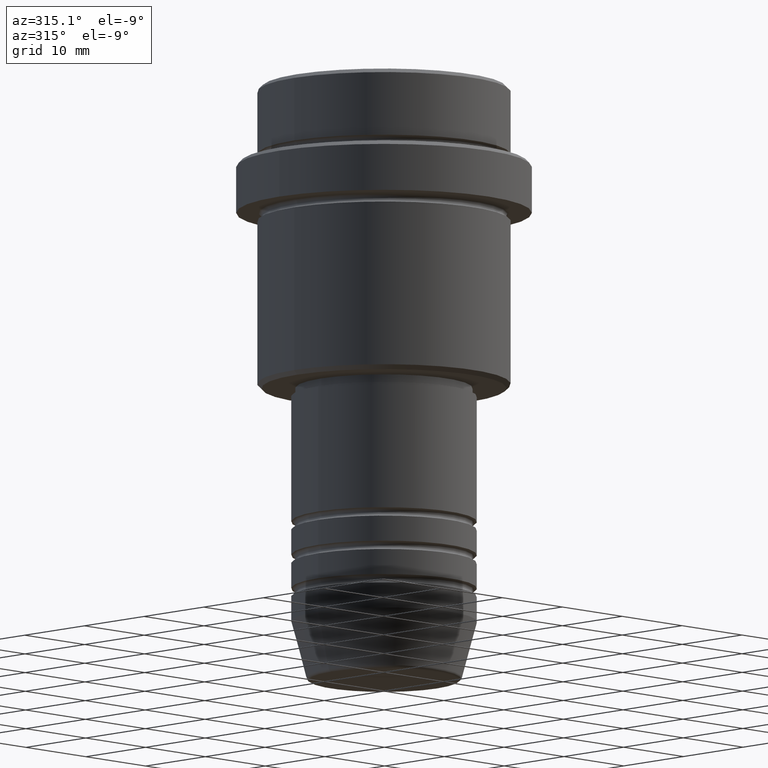
[diagram: clean part render]
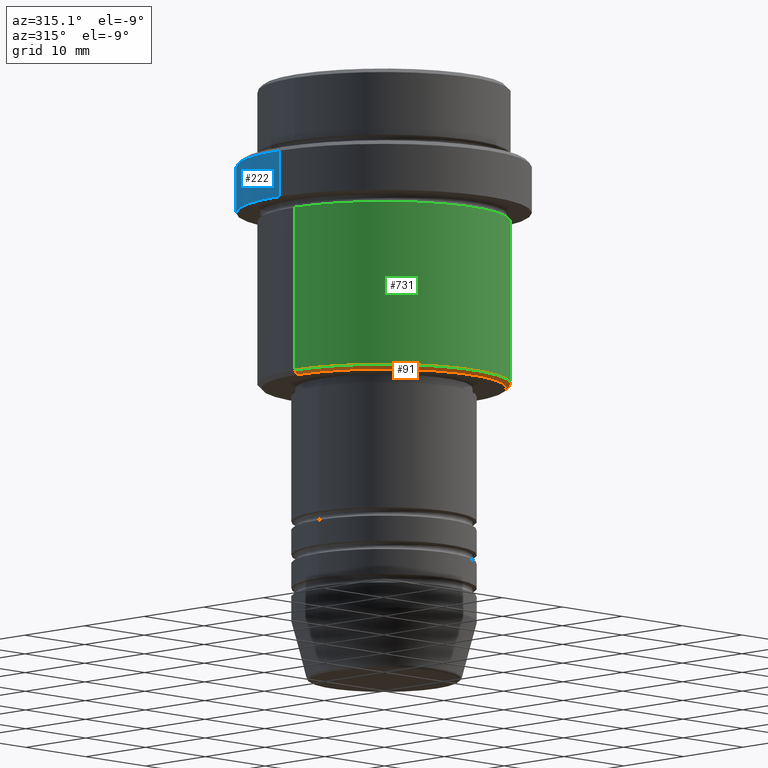
[diagram: same view with three faces highlighted in distinct colors, each labeled with its STEP entity id]
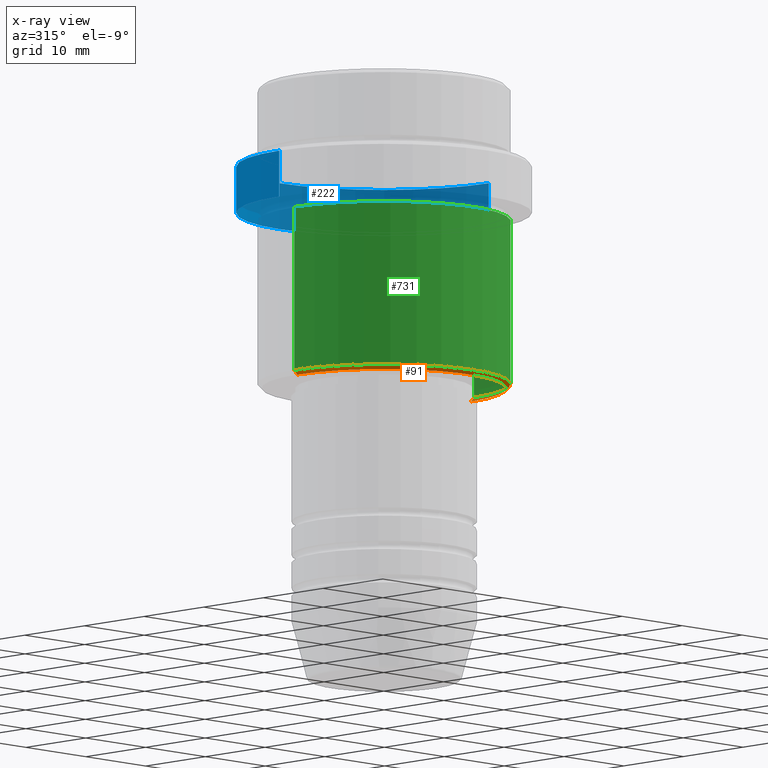
[diagram: x-ray of the same camera — body ghosted, the three highlighted faces saturated]
A machine part, auxiliary view with three faces highlighted in distinct colors.
The next image is the same camera in x-ray (body ghosted, the three faces saturated) — at least one of them is partly hidden behind the body in this view.
Their STEP definitions:

[orange] entity #91 — the highlighted conical surface has half-angle 45 deg.
#21 = ORIENTED_EDGE ( 'NONE', *, *, #1215, .F. ) ;
#91 = ADVANCED_FACE ( 'NONE', ( #445 ), #1347, .T. ) ;
#127 = EDGE_CURVE ( 'NONE', #869, #558, #894, .T. ) ;
#156 = CIRCLE ( 'NONE', #1067, 15.00000000000000000 ) ;
#165 = EDGE_CURVE ( 'NONE', #558, #968, #1014, .T. ) ;
#185 = CARTESIAN_POINT ( 'NONE',  ( 15.00000000000000000, 0.000000000000000000, -35.49999999999998579 ) ) ;
#241 = CARTESIAN_POINT ( 'NONE',  ( -15.00000000000000000, 1.836970198721029589E-15, -35.49999999999998579 ) ) ;
#248 = VECTOR ( 'NONE', #1298, 999.9999999999998863 ) ;
#270 = AXIS2_PLACEMENT_3D ( 'NONE', #677, #906, #352 ) ;
#352 = DIRECTION ( 'NONE',  ( -1.000000000000000000, 0.000000000000000000, 0.000000000000000000 ) ) ;
#382 = EDGE_CURVE ( 'NONE', #869, #976, #1083, .T. ) ;
#445 = FACE_OUTER_BOUND ( 'NONE', #580, .T. ) ;
#491 = DIRECTION ( 'NONE',  ( -0.000000000000000000, -0.000000000000000000, 1.000000000000000000 ) ) ;
#517 = CARTESIAN_POINT ( 'NONE',  ( 15.00000000000000000, 0.000000000000000000, -35.49999999999998579 ) ) ;
#558 = VERTEX_POINT ( 'NONE', #1140 ) ;
#580 = EDGE_LOOP ( 'NONE', ( #1138, #1082, #787, #21 ) ) ;
#677 = CARTESIAN_POINT ( 'NONE',  ( 0.000000000000000000, 0.000000000000000000, -36.00000000000000000 ) ) ;
#721 = CARTESIAN_POINT ( 'NONE',  ( 0.000000000000000000, 0.000000000000000000, -35.49999999999998579 ) ) ;
#730 = VECTOR ( 'NONE', #808, 999.9999999999998863 ) ;
#771 = DIRECTION ( 'NONE',  ( -0.000000000000000000, -0.000000000000000000, 1.000000000000000000 ) ) ;
#787 = ORIENTED_EDGE ( 'NONE', *, *, #382, .T. ) ;
#808 = DIRECTION ( 'NONE',  ( -0.7071067811865439090, 8.659560562354888485E-17, 0.7071067811865512365 ) ) ;
#809 = CARTESIAN_POINT ( 'NONE',  ( 14.49999999999999112, 0.000000000000000000, -36.00000000000000000 ) ) ;
#869 = VERTEX_POINT ( 'NONE', #809 ) ;
#883 = DIRECTION ( 'NONE',  ( 1.000000000000000000, 0.000000000000000000, 0.000000000000000000 ) ) ;
#894 = CIRCLE ( 'NONE', #270, 14.49999999999999112 ) ;
#906 = DIRECTION ( 'NONE',  ( 0.000000000000000000, 0.000000000000000000, -1.000000000000000000 ) ) ;
#947 = DIRECTION ( 'NONE',  ( -1.000000000000000000, 0.000000000000000000, 0.000000000000000000 ) ) ;
#968 = VERTEX_POINT ( 'NONE', #1366 ) ;
#976 = VERTEX_POINT ( 'NONE', #185 ) ;
#1014 = LINE ( 'NONE', #241, #730 ) ;
#1067 = AXIS2_PLACEMENT_3D ( 'NONE', #721, #491, #947 ) ;
#1082 = ORIENTED_EDGE ( 'NONE', *, *, #127, .F. ) ;
#1083 = LINE ( 'NONE', #517, #248 ) ;
#1138 = ORIENTED_EDGE ( 'NONE', *, *, #165, .F. ) ;
#1140 = CARTESIAN_POINT ( 'NONE',  ( -14.49999999999999112, 1.806354028742345013E-15, -36.00000000000000000 ) ) ;
#1215 = EDGE_CURVE ( 'NONE', #968, #976, #156, .T. ) ;
#1250 = AXIS2_PLACEMENT_3D ( 'NONE', #1316, #771, #883 ) ;
#1298 = DIRECTION ( 'NONE',  ( 0.7071067811865439090, 0.000000000000000000, 0.7071067811865512365 ) ) ;
#1316 = CARTESIAN_POINT ( 'NONE',  ( 0.000000000000000000, 0.000000000000000000, -35.49999999999998579 ) ) ;
#1347 = CONICAL_SURFACE ( 'NONE', #1250, 15.00000000000000000, 0.7853981633974430610 ) ;
#1366 = CARTESIAN_POINT ( 'NONE',  ( -15.00000000000000000, 1.836970198721029589E-15, -35.49999999999998579 ) ) ;

[blue] entity #222 — the highlighted cylindrical surface (partial cylindrical patch) has radius 17.5 mm, axis along (-0, -0, 1).
#24 = EDGE_CURVE ( 'NONE', #1258, #733, #637, .T. ) ;
#35 = ORIENTED_EDGE ( 'NONE', *, *, #691, .F. ) ;
#114 = AXIS2_PLACEMENT_3D ( 'NONE', #784, #406, #380 ) ;
#148 = LINE ( 'NONE', #1115, #1119 ) ;
#159 = ORIENTED_EDGE ( 'NONE', *, *, #24, .T. ) ;
#213 = EDGE_CURVE ( 'NONE', #454, #1321, #523, .T. ) ;
#222 = ADVANCED_FACE ( 'NONE', ( #1007 ), #1333, .T. ) ;
#275 = CARTESIAN_POINT ( 'NONE',  ( -17.50000000000000000, 2.143131898507868248E-15, -15.00000000000000000 ) ) ;
#293 = LINE ( 'NONE', #761, #727 ) ;
#336 = DIRECTION ( 'NONE',  ( 1.000000000000000000, 0.000000000000000000, 0.000000000000000000 ) ) ;
#344 = DIRECTION ( 'NONE',  ( -0.000000000000000000, -0.000000000000000000, 1.000000000000000000 ) ) ;
#373 = ORIENTED_EDGE ( 'NONE', *, *, #1149, .T. ) ;
#380 = DIRECTION ( 'NONE',  ( 1.000000000000000000, 0.000000000000000000, 0.000000000000000000 ) ) ;
#383 = CARTESIAN_POINT ( 'NONE',  ( 17.50000000000000000, 0.000000000000000000, -9.500000000000021316 ) ) ;
#389 = AXIS2_PLACEMENT_3D ( 'NONE', #1286, #1208, #336 ) ;
#406 = DIRECTION ( 'NONE',  ( -0.000000000000000000, -0.000000000000000000, 1.000000000000000000 ) ) ;
#454 = VERTEX_POINT ( 'NONE', #1401 ) ;
#501 = AXIS2_PLACEMENT_3D ( 'NONE', #1323, #344, #576 ) ;
#504 = ORIENTED_EDGE ( 'NONE', *, *, #213, .T. ) ;
#523 = CIRCLE ( 'NONE', #501, 17.50000000000000000 ) ;
#576 = DIRECTION ( 'NONE',  ( 1.000000000000000000, 0.000000000000000000, 0.000000000000000000 ) ) ;
#624 = DIRECTION ( 'NONE',  ( -0.000000000000000000, -0.000000000000000000, 1.000000000000000000 ) ) ;
#637 = CIRCLE ( 'NONE', #389, 17.50000000000000000 ) ;
#691 = EDGE_CURVE ( 'NONE', #454, #733, #293, .T. ) ;
#727 = VECTOR ( 'NONE', #624, 1000.000000000000000 ) ;
#733 = VERTEX_POINT ( 'NONE', #383 ) ;
#761 = CARTESIAN_POINT ( 'NONE',  ( 17.50000000000000000, 0.000000000000000000, 0.000000000000000000 ) ) ;
#784 = CARTESIAN_POINT ( 'NONE',  ( 0.000000000000000000, 0.000000000000000000, 0.000000000000000000 ) ) ;
#941 = CARTESIAN_POINT ( 'NONE',  ( -17.50000000000000000, 2.143131898507868248E-15, -9.500000000000021316 ) ) ;
#1007 = FACE_OUTER_BOUND ( 'NONE', #1192, .T. ) ;
#1115 = CARTESIAN_POINT ( 'NONE',  ( -17.50000000000000000, 2.143131898507868248E-15, 0.000000000000000000 ) ) ;
#1119 = VECTOR ( 'NONE', #1343, 1000.000000000000000 ) ;
#1149 = EDGE_CURVE ( 'NONE', #1321, #1258, #148, .T. ) ;
#1192 = EDGE_LOOP ( 'NONE', ( #504, #373, #159, #35 ) ) ;
#1208 = DIRECTION ( 'NONE',  ( 0.000000000000000000, 0.000000000000000000, -1.000000000000000000 ) ) ;
#1258 = VERTEX_POINT ( 'NONE', #941 ) ;
#1286 = CARTESIAN_POINT ( 'NONE',  ( 0.000000000000000000, 0.000000000000000000, -9.500000000000021316 ) ) ;
#1321 = VERTEX_POINT ( 'NONE', #275 ) ;
#1323 = CARTESIAN_POINT ( 'NONE',  ( 0.000000000000000000, 0.000000000000000000, -15.00000000000000000 ) ) ;
#1333 = CYLINDRICAL_SURFACE ( 'NONE', #114, 17.50000000000000000 ) ;
#1343 = DIRECTION ( 'NONE',  ( -0.000000000000000000, -0.000000000000000000, 1.000000000000000000 ) ) ;
#1401 = CARTESIAN_POINT ( 'NONE',  ( 17.50000000000000000, 0.000000000000000000, -15.00000000000000000 ) ) ;

[green] entity #731 — the highlighted cylindrical surface (partial cylindrical patch) has radius 15 mm, axis along (-0, -0, 1).
#4 = CIRCLE ( 'NONE', #438, 15.00000000000000178 ) ;
#76 = DIRECTION ( 'NONE',  ( -0.000000000000000000, -0.000000000000000000, 1.000000000000000000 ) ) ;
#118 = LINE ( 'NONE', #155, #297 ) ;
#155 = CARTESIAN_POINT ( 'NONE',  ( -15.00000000000000000, 1.836970198721029589E-15, 0.000000000000000000 ) ) ;
#156 = CIRCLE ( 'NONE', #1067, 15.00000000000000000 ) ;
#162 = CARTESIAN_POINT ( 'NONE',  ( 15.00000000000000000, 0.000000000000000000, 0.000000000000000000 ) ) ;
#177 = ORIENTED_EDGE ( 'NONE', *, *, #1215, .T. ) ;
#185 = CARTESIAN_POINT ( 'NONE',  ( 15.00000000000000000, 0.000000000000000000, -35.49999999999998579 ) ) ;
#256 = DIRECTION ( 'NONE',  ( 1.000000000000000000, 0.000000000000000000, 0.000000000000000000 ) ) ;
#297 = VECTOR ( 'NONE', #1344, 1000.000000000000000 ) ;
#332 = ORIENTED_EDGE ( 'NONE', *, *, #815, .F. ) ;
#438 = AXIS2_PLACEMENT_3D ( 'NONE', #985, #1009, #256 ) ;
#491 = DIRECTION ( 'NONE',  ( -0.000000000000000000, -0.000000000000000000, 1.000000000000000000 ) ) ;
#492 = EDGE_CURVE ( 'NONE', #976, #1156, #496, .T. ) ;
#496 = LINE ( 'NONE', #162, #977 ) ;
#721 = CARTESIAN_POINT ( 'NONE',  ( 0.000000000000000000, 0.000000000000000000, -35.49999999999998579 ) ) ;
#731 = ADVANCED_FACE ( 'NONE', ( #755 ), #978, .T. ) ;
#755 = FACE_OUTER_BOUND ( 'NONE', #1047, .T. ) ;
#765 = EDGE_CURVE ( 'NONE', #968, #1032, #118, .T. ) ;
#815 = EDGE_CURVE ( 'NONE', #1032, #1156, #4, .T. ) ;
#915 = CARTESIAN_POINT ( 'NONE',  ( 15.00000000000000178, 0.000000000000000000, -16.00000000000000000 ) ) ;
#947 = DIRECTION ( 'NONE',  ( -1.000000000000000000, 0.000000000000000000, 0.000000000000000000 ) ) ;
#968 = VERTEX_POINT ( 'NONE', #1366 ) ;
#976 = VERTEX_POINT ( 'NONE', #185 ) ;
#977 = VECTOR ( 'NONE', #76, 1000.000000000000000 ) ;
#978 = CYLINDRICAL_SURFACE ( 'NONE', #1124, 15.00000000000000000 ) ;
#985 = CARTESIAN_POINT ( 'NONE',  ( 0.000000000000000000, 0.000000000000000000, -16.00000000000000000 ) ) ;
#1009 = DIRECTION ( 'NONE',  ( -0.000000000000000000, -0.000000000000000000, 1.000000000000000000 ) ) ;
#1032 = VERTEX_POINT ( 'NONE', #1181 ) ;
#1047 = EDGE_LOOP ( 'NONE', ( #1112, #177, #1151, #332 ) ) ;
#1067 = AXIS2_PLACEMENT_3D ( 'NONE', #721, #491, #947 ) ;
#1112 = ORIENTED_EDGE ( 'NONE', *, *, #765, .F. ) ;
#1124 = AXIS2_PLACEMENT_3D ( 'NONE', #1354, #1214, #1131 ) ;
#1131 = DIRECTION ( 'NONE',  ( 1.000000000000000000, 0.000000000000000000, 0.000000000000000000 ) ) ;
#1151 = ORIENTED_EDGE ( 'NONE', *, *, #492, .T. ) ;
#1156 = VERTEX_POINT ( 'NONE', #915 ) ;
#1181 = CARTESIAN_POINT ( 'NONE',  ( -15.00000000000000355, 1.836970198721029983E-15, -16.00000000000000000 ) ) ;
#1214 = DIRECTION ( 'NONE',  ( -0.000000000000000000, -0.000000000000000000, 1.000000000000000000 ) ) ;
#1215 = EDGE_CURVE ( 'NONE', #968, #976, #156, .T. ) ;
#1344 = DIRECTION ( 'NONE',  ( -0.000000000000000000, -0.000000000000000000, 1.000000000000000000 ) ) ;
#1354 = CARTESIAN_POINT ( 'NONE',  ( 0.000000000000000000, 0.000000000000000000, 0.000000000000000000 ) ) ;
#1366 = CARTESIAN_POINT ( 'NONE',  ( -15.00000000000000000, 1.836970198721029589E-15, -35.49999999999998579 ) ) ;